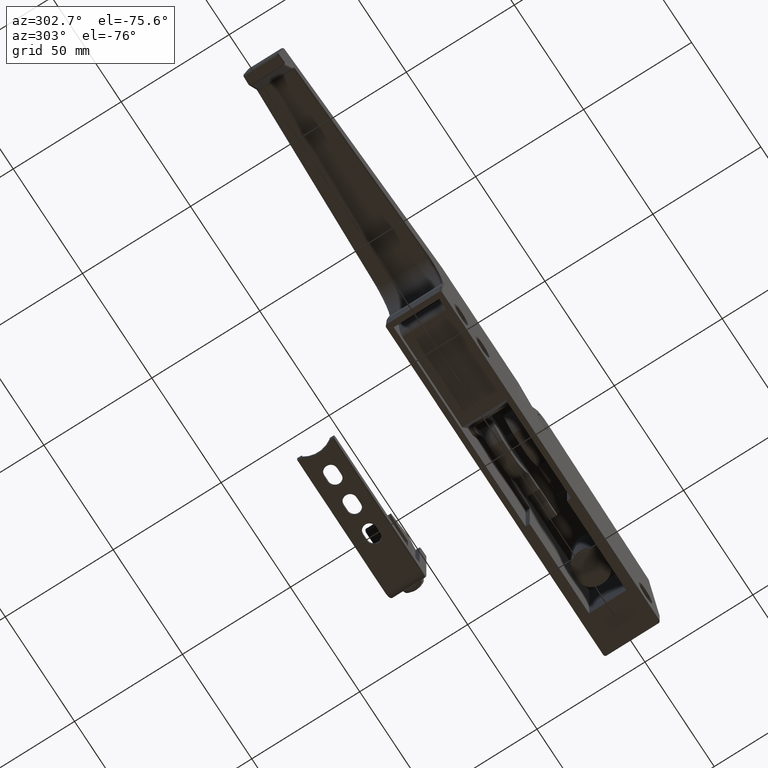
[diagram: clean part render]
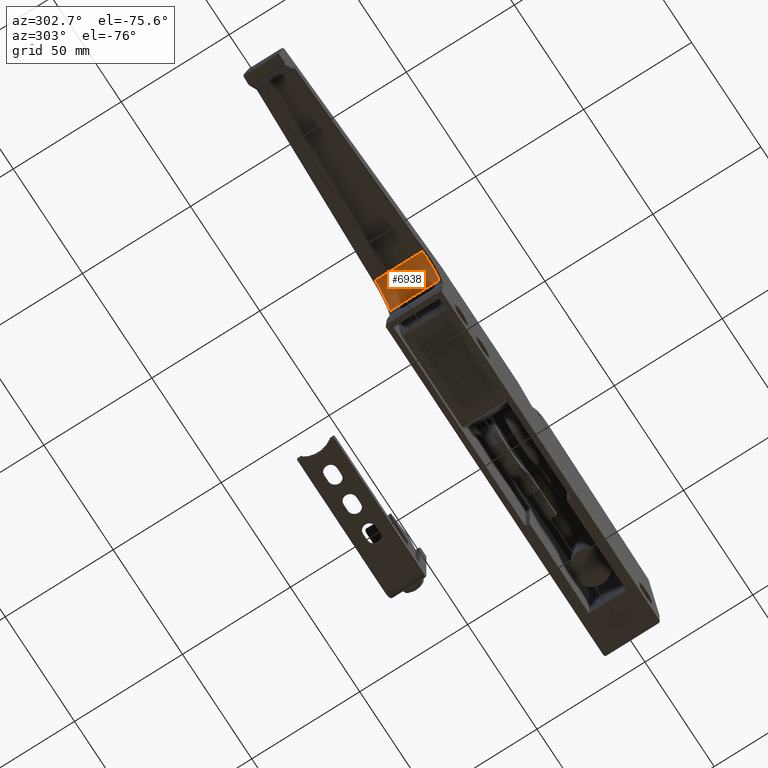
[diagram: same view with one face highlighted and labeled with its STEP entity id]
A machine part, auxiliary view. The second image highlights one B-rep face of the part: STEP entity #6938.
In plain terms, the highlighted cylindrical surface (edge-blend (fillet) strip) has radius 12 mm, axis along (0, -1, -0).
Its self-contained STEP definition (entity closure, byte-faithful):
#520=FACE_OUTER_BOUND('',#958,.T.);
#958=EDGE_LOOP('',(#5046,#5047,#5048,#5049));
#1822=LINE('',#11156,#2461);
#1823=LINE('',#11175,#2462);
#2461=VECTOR('',#8487,21.7485839484222);
#2462=VECTOR('',#8490,22.6427867561387);
#3007=B_SPLINE_CURVE_WITH_KNOTS('',3,(#10956,#10957,#10958,#10959,#10960,
#10961,#10962,#10963,#10964,#10965,#10966,#10967,#10968,#10969,#10970,#10971,
#10972,#10973,#10974,#10975,#10976,#10977,#10978,#10979,#10980,#10981,#10982,
#10983,#10984,#10985,#10986,#10987,#10988,#10989,#10990,#10991,#10992,#10993,
#10994,#10995,#10996,#10997,#10998,#10999,#11000,#11001,#11002,#11003,#11004,
#11005,#11006,#11007,#11008,#11009,#11010,#11011,#11012,#11013),
 .UNSPECIFIED.,.F.,.F.,(4,3,3,3,3,3,3,3,3,3,3,3,3,3,3,3,3,3,3,4),(2.35331795557691E-6,
0.0777312143115117,0.0999999875344315,0.180188953517035,0.19999997506857,
0.283521328154868,0.299999962602708,0.386314293679009,0.399999950136846,
0.489219947359337,0.499999937670984,0.592195541157738,0.599999925205122,
0.695074013074035,0.69999991273926,0.798035148773901,0.799999900273399,
0.899999887807537,0.900890214043624,0.999999875341675),.UNSPECIFIED.);
#3013=B_SPLINE_CURVE_WITH_KNOTS('',3,(#11176,#11177,#11178,#11179,#11180,
#11181,#11182,#11183,#11184,#11185,#11186,#11187,#11188,#11189,#11190,#11191,
#11192,#11193,#11194,#11195,#11196,#11197,#11198,#11199,#11200,#11201,#11202,
#11203,#11204,#11205,#11206,#11207,#11208,#11209,#11210,#11211,#11212,#11213,
#11214,#11215,#11216,#11217,#11218,#11219,#11220,#11221,#11222,#11223,#11224,
#11225,#11226,#11227,#11228,#11229,#11230,#11231,#11232,#11233),
 .UNSPECIFIED.,.F.,.F.,(4,3,3,3,3,3,3,3,3,3,3,3,3,3,3,3,3,3,3,4),(3.50380189019176E-7,
0.0619004563300795,0.100000315342055,0.168641172156804,0.200000280303922,
0.275232784208878,0.300000245265788,0.382067002762458,0.400000210227654,
0.488958881155395,0.500000175189521,0.595591088600679,0.600000140151387,
0.700000105113253,0.702550870516689,0.80000007007512,0.809327628574848,
0.900000035036986,0.915633558657809,0.999996723930492),.UNSPECIFIED.);
#3134=VERTEX_POINT('',#10711);
#3161=VERTEX_POINT('',#10953);
#3162=VERTEX_POINT('',#10955);
#3171=VERTEX_POINT('',#11174);
#3855=EDGE_CURVE('',#3162,#3161,#3007,.T.);
#3876=EDGE_CURVE('',#3162,#3134,#1822,.T.);
#3877=EDGE_CURVE('',#3161,#3171,#1823,.T.);
#3878=EDGE_CURVE('',#3171,#3134,#3013,.T.);
#5046=ORIENTED_EDGE('',*,*,#3855,.T.);
#5047=ORIENTED_EDGE('',*,*,#3877,.T.);
#5048=ORIENTED_EDGE('',*,*,#3878,.T.);
#5049=ORIENTED_EDGE('',*,*,#3876,.F.);
#6761=CYLINDRICAL_SURFACE('',#7455,12.);
#6938=ADVANCED_FACE('',(#520),#6761,.F.);
#7455=AXIS2_PLACEMENT_3D('',#11173,#8488,#8489);
#8487=DIRECTION('',(0.999999999996681,2.57649224425495E-6,4.56324103705091E-9));
#8488=DIRECTION('center_axis',(1.,0.,0.));
#8489=DIRECTION('ref_axis',(0.,1.,0.));
#8490=DIRECTION('',(0.999999999999975,-3.02499094239992E-8,2.21595176862894E-7));
#10711=CARTESIAN_POINT('',(10.8742931257074,83.7792038852344,2.35203387518906));
#10953=CARTESIAN_POINT('',(-11.3213933665473,72.3628545808603,11.4213746037739));
#10955=CARTESIAN_POINT('',(-10.8742941559636,83.7791773624022,2.35203716773552));
#10956=CARTESIAN_POINT('Ctrl Pts',(-10.8742943795939,83.779173875665,2.35204302157508));
#10957=CARTESIAN_POINT('Ctrl Pts',(-10.8891933608615,83.398741340469,2.3590581447511));
#10958=CARTESIAN_POINT('Ctrl Pts',(-10.9045112911371,83.0075438539009,2.38450549232639));
#10959=CARTESIAN_POINT('Ctrl Pts',(-10.9199862154758,82.6124233869631,2.4304936703322));
#10960=CARTESIAN_POINT('Ctrl Pts',(-10.9244196727057,82.4992241458896,2.44366896061507));
#10961=CARTESIAN_POINT('Ctrl Pts',(-10.9288659111693,82.3857055833756,2.4585194577203));
#10962=CARTESIAN_POINT('Ctrl Pts',(-10.9333189305237,82.2720245147511,2.4750621783554));
#10963=CARTESIAN_POINT('Ctrl Pts',(-10.9493540759697,81.8626635116306,2.53463185689086));
#10964=CARTESIAN_POINT('Ctrl Pts',(-10.9654713624537,81.4512621634787,2.61552725248907));
#10965=CARTESIAN_POINT('Ctrl Pts',(-10.9821654285789,81.0248905048985,2.72465168296261));
#10966=CARTESIAN_POINT('Ctrl Pts',(-10.9862897678783,80.9195535921002,2.75161133280245));
#10967=CARTESIAN_POINT('Ctrl Pts',(-10.9904488665526,80.8133143131207,2.7803271855157));
#10968=CARTESIAN_POINT('Ctrl Pts',(-10.9946490858891,80.7060057180907,2.81096439555215));
#10969=CARTESIAN_POINT('Ctrl Pts',(-11.0123568048644,80.2536030476186,2.94012791346451));
#10970=CARTESIAN_POINT('Ctrl Pts',(-11.0308135348657,79.7823074010146,3.10422066443267));
#10971=CARTESIAN_POINT('Ctrl Pts',(-11.0490820941665,79.3159907499588,3.30192064900977));
#10972=CARTESIAN_POINT('Ctrl Pts',(-11.0526864528063,79.2239871922368,3.34092655176165));
#10973=CARTESIAN_POINT('Ctrl Pts',(-11.0562836878647,79.1321723107753,3.38121254124895));
#10974=CARTESIAN_POINT('Ctrl Pts',(-11.0598670951502,79.0407168446561,3.42272211035927));
#10975=CARTESIAN_POINT('Ctrl Pts',(-11.0786368180782,78.5616773097763,3.64014732859349));
#10976=CARTESIAN_POINT('Ctrl Pts',(-11.0970167096339,78.0922684462625,3.89142566769441));
#10977=CARTESIAN_POINT('Ctrl Pts',(-11.1146825640173,77.6410911241891,4.17334642875345));
#10978=CARTESIAN_POINT('Ctrl Pts',(-11.1174835915073,77.5695542454986,4.21804666145033));
#10979=CARTESIAN_POINT('Ctrl Pts',(-11.1202667396591,77.4984738804371,4.26351278489573));
#10980=CARTESIAN_POINT('Ctrl Pts',(-11.12303086674,77.4278804676417,4.30972452499975));
#10981=CARTESIAN_POINT('Ctrl Pts',(-11.1410508580529,76.9676654890662,4.61098967340014));
#10982=CARTESIAN_POINT('Ctrl Pts',(-11.1582592273736,76.5283746673026,4.94426163367821));
#10983=CARTESIAN_POINT('Ctrl Pts',(-11.1742499533857,76.120052787741,5.29978276879453));
#10984=CARTESIAN_POINT('Ctrl Pts',(-11.1761820300149,76.0707173691944,5.34273854677537));
#10985=CARTESIAN_POINT('Ctrl Pts',(-11.1780964894817,76.0218300010761,5.38601504488672));
#10986=CARTESIAN_POINT('Ctrl Pts',(-11.1799927873117,75.9734040171296,5.4295907882555));
#10987=CARTESIAN_POINT('Ctrl Pts',(-11.1962108281237,75.5592419738142,5.80227126765517));
#10988=CARTESIAN_POINT('Ctrl Pts',(-11.2110876124324,75.17920695111,6.19736407845898));
#10989=CARTESIAN_POINT('Ctrl Pts',(-11.2242917549365,74.8422163480451,6.59532408259179));
#10990=CARTESIAN_POINT('Ctrl Pts',(-11.2254094893536,74.8136899976854,6.62901151008606));
#10991=CARTESIAN_POINT('Ctrl Pts',(-11.2265154016276,74.7854679156113,6.66271726076013));
#10992=CARTESIAN_POINT('Ctrl Pts',(-11.2276093940766,74.7575528724414,6.69642812239589));
#10993=CARTESIAN_POINT('Ctrl Pts',(-11.240936561678,74.4174879485371,7.10709850994162));
#10994=CARTESIAN_POINT('Ctrl Pts',(-11.2524650005199,74.123038256487,7.51835193861083));
#10995=CARTESIAN_POINT('Ctrl Pts',(-11.2624329419737,73.8683827162539,7.91957767983111));
#10996=CARTESIAN_POINT('Ctrl Pts',(-11.2629493926762,73.8551887149387,7.94036565464799));
#10997=CARTESIAN_POINT('Ctrl Pts',(-11.2634616634014,73.8421013066559,7.96112729033121));
#10998=CARTESIAN_POINT('Ctrl Pts',(-11.26396979203,73.8291195605763,7.9818612664504));
#10999=CARTESIAN_POINT('Ctrl Pts',(-11.2740825660264,73.5707569004431,8.39450877876803));
#11000=CARTESIAN_POINT('Ctrl Pts',(-11.2825501664942,73.3543140102586,8.7959453265815));
#11001=CARTESIAN_POINT('Ctrl Pts',(-11.2896906557304,73.1723363976694,9.17682873714935));
#11002=CARTESIAN_POINT('Ctrl Pts',(-11.2898337602661,73.1686893335967,9.18446212777823));
#11003=CARTESIAN_POINT('Ctrl Pts',(-11.2899763323355,73.1650560979986,9.19208734838669));
#11004=CARTESIAN_POINT('Ctrl Pts',(-11.290118374635,73.1614366273932,9.19970433328668));
#11005=CARTESIAN_POINT('Ctrl Pts',(-11.2973479037558,72.9772163758699,9.58738613184536));
#11006=CARTESIAN_POINT('Ctrl Pts',(-11.3032033553931,72.8277464959899,9.95302515545966));
#11007=CARTESIAN_POINT('Ctrl Pts',(-11.3083241057967,72.6965678480482,10.3210520899638));
#11008=CARTESIAN_POINT('Ctrl Pts',(-11.3083696971867,72.6953999299838,10.324328730726));
#11009=CARTESIAN_POINT('Ctrl Pts',(-11.3084152313236,72.6942335411363,10.3276055895515));
#11010=CARTESIAN_POINT('Ctrl Pts',(-11.3084607080879,72.6930686836559,10.3308826581598));
#11011=CARTESIAN_POINT('Ctrl Pts',(-11.3135231071586,72.5633986529825,10.6956805790256));
#11012=CARTESIAN_POINT('Ctrl Pts',(-11.3178626081042,72.4530100986413,11.0631352698467));
#11013=CARTESIAN_POINT('Ctrl Pts',(-11.3213933721472,72.3628545755999,11.4213746023949));
#11156=CARTESIAN_POINT('',(-10.87429302636,83.7792082774,2.352034132437));
#11173=CARTESIAN_POINT('Origin',(-27.565,84.,14.35));
#11174=CARTESIAN_POINT('',(11.3213933895913,72.3628553252488,11.4213773855047));
#11175=CARTESIAN_POINT('',(-11.32139338547,72.36285424596,11.42137595681));
#11176=CARTESIAN_POINT('Ctrl Pts',(11.3213933991692,72.362856135035,11.4213775892046));
#11177=CARTESIAN_POINT('Ctrl Pts',(11.3191920849231,72.4190646508268,11.198030425206));
#11178=CARTESIAN_POINT('Ctrl Pts',(11.3166368166818,72.4842730134961,10.9660696443443));
#11179=CARTESIAN_POINT('Ctrl Pts',(11.3136703643002,72.5600131056472,10.726921218488));
#11180=CARTESIAN_POINT('Ctrl Pts',(11.3118444963833,72.6066315530348,10.5797240341175));
#11181=CARTESIAN_POINT('Ctrl Pts',(11.3098628690027,72.6572394956763,10.4298095367673));
#11182=CARTESIAN_POINT('Ctrl Pts',(11.307712988594,72.7121724013013,10.2775529266451));
#11183=CARTESIAN_POINT('Ctrl Pts',(11.3038397555395,72.8111397415281,10.0032468151393));
#11184=CARTESIAN_POINT('Ctrl Pts',(11.2994172279396,72.9240744314206,9.72131153532524));
#11185=CARTESIAN_POINT('Ctrl Pts',(11.2943183890218,73.0542448772831,9.43162173134799));
#11186=CARTESIAN_POINT('Ctrl Pts',(11.2919889448909,73.1137142557084,9.29927469616227));
#11187=CARTESIAN_POINT('Ctrl Pts',(11.2895179552309,73.1767909330627,9.16531960472685));
#11188=CARTESIAN_POINT('Ctrl Pts',(11.2868918216992,73.2438245290183,9.02979891901728));
#11189=CARTESIAN_POINT('Ctrl Pts',(11.280591559579,73.4046424083351,8.7046761359006));
#11190=CARTESIAN_POINT('Ctrl Pts',(11.2734040427845,73.5882509359799,8.37053903494641));
#11191=CARTESIAN_POINT('Ctrl Pts',(11.2651975476161,73.7978006153409,8.03215798585475));
#11192=CARTESIAN_POINT('Ctrl Pts',(11.2624958689673,73.8667869344673,7.92075880304459));
#11193=CARTESIAN_POINT('Ctrl Pts',(11.2596838580371,73.9385820844011,7.80890702192533));
#11194=CARTESIAN_POINT('Ctrl Pts',(11.2567575434338,74.0132798717622,7.69678953337354));
#11195=CARTESIAN_POINT('Ctrl Pts',(11.2470612265464,74.2607903124495,7.32528925230019));
#11196=CARTESIAN_POINT('Ctrl Pts',(11.2361112356018,74.5404770716657,6.95091996594285));
#11197=CARTESIAN_POINT('Ctrl Pts',(11.2239882870849,74.8500299128762,6.58610616991892));
#11198=CARTESIAN_POINT('Ctrl Pts',(11.221339183386,74.9176733228537,6.50638714982082));
#11199=CARTESIAN_POINT('Ctrl Pts',(11.2186345865205,74.9867296735016,6.42712032657708));
#11200=CARTESIAN_POINT('Ctrl Pts',(11.2158763787474,75.0571483019488,6.34842332293558));
#11201=CARTESIAN_POINT('Ctrl Pts',(11.2021941360076,75.4064638166096,5.95804246867232));
#11202=CARTESIAN_POINT('Ctrl Pts',(11.1871752268318,75.7898817133351,5.58187455796188));
#11203=CARTESIAN_POINT('Ctrl Pts',(11.1712658809294,76.1962010194182,5.23404028800513));
#11204=CARTESIAN_POINT('Ctrl Pts',(11.169291258735,76.2466322014876,5.19086810018257));
#11205=CARTESIAN_POINT('Ctrl Pts',(11.1673031739383,76.2974096794976,5.14812641657242));
#11206=CARTESIAN_POINT('Ctrl Pts',(11.1653027233519,76.3485058166054,5.10583571319792));
#11207=CARTESIAN_POINT('Ctrl Pts',(11.147983657471,76.7908748362885,4.73970046203316));
#11208=CARTESIAN_POINT('Ctrl Pts',(11.1297124208179,77.2573911839041,4.40755792976744));
#11209=CARTESIAN_POINT('Ctrl Pts',(11.1109615020204,77.736079097945,4.11460577540932));
#11210=CARTESIAN_POINT('Ctrl Pts',(11.1100966314522,77.7581581807196,4.10109360040896));
#11211=CARTESIAN_POINT('Ctrl Pts',(11.1092307508918,77.7802628895985,4.08766414322348));
#11212=CARTESIAN_POINT('Ctrl Pts',(11.1083639112151,77.8023919342295,4.07431764787411));
#11213=CARTESIAN_POINT('Ctrl Pts',(11.0887034612749,78.3042920962673,3.77161103354874));
#11214=CARTESIAN_POINT('Ctrl Pts',(11.068543030318,78.8190929239055,3.51234117030257));
#11215=CARTESIAN_POINT('Ctrl Pts',(11.0489016879983,79.3207111238858,3.29992074335777));
#11216=CARTESIAN_POINT('Ctrl Pts',(11.0484006832581,79.3335062318714,3.29450239469894));
#11217=CARTESIAN_POINT('Ctrl Pts',(11.0479000070139,79.3462927328768,3.28911394282261));
#11218=CARTESIAN_POINT('Ctrl Pts',(11.0473996608419,79.3590705988039,3.28375518555981));
#11219=CARTESIAN_POINT('Ctrl Pts',(11.0282844831382,79.8472349768281,3.07902973131628));
#11220=CARTESIAN_POINT('Ctrl Pts',(11.0096640141808,80.3224652972928,2.91733139172675));
#11221=CARTESIAN_POINT('Ctrl Pts',(10.9915523569883,80.7850789118095,2.78867636605804));
#11222=CARTESIAN_POINT('Ctrl Pts',(10.9898187609941,80.8293589630745,2.77636187518848));
#11223=CARTESIAN_POINT('Ctrl Pts',(10.9880896690512,80.8735224792173,2.7643537938071));
#11224=CARTESIAN_POINT('Ctrl Pts',(10.9863636713209,80.9176055219426,2.75263632191903));
#11225=CARTESIAN_POINT('Ctrl Pts',(10.9695853935152,81.346133048004,2.63873176974973));
#11226=CARTESIAN_POINT('Ctrl Pts',(10.9531109907632,81.7667629122218,2.5509161442598));
#11227=CARTESIAN_POINT('Ctrl Pts',(10.9355509932964,82.2150316332045,2.48349184090276));
#11228=CARTESIAN_POINT('Ctrl Pts',(10.9325233397258,82.2923210745174,2.4718667006834));
#11229=CARTESIAN_POINT('Ctrl Pts',(10.929463858477,82.3704294023439,2.46089168541554));
#11230=CARTESIAN_POINT('Ctrl Pts',(10.9263752142753,82.4492871067092,2.450618103338));
#11231=CARTESIAN_POINT('Ctrl Pts',(10.9097079671735,82.8748268447586,2.39517878436091));
#11232=CARTESIAN_POINT('Ctrl Pts',(10.8921864576845,83.3223170497025,2.36047902858073));
#11233=CARTESIAN_POINT('Ctrl Pts',(10.8742930065375,83.7792112995087,2.35204685073564));